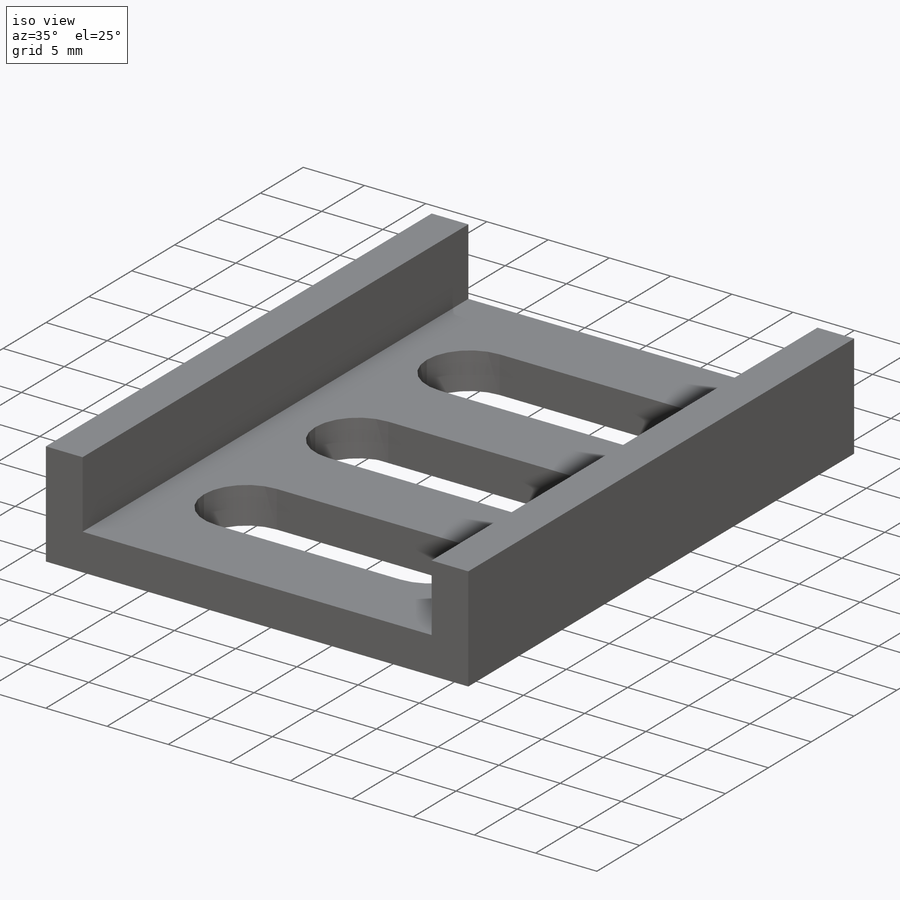
[diagram: iso view]
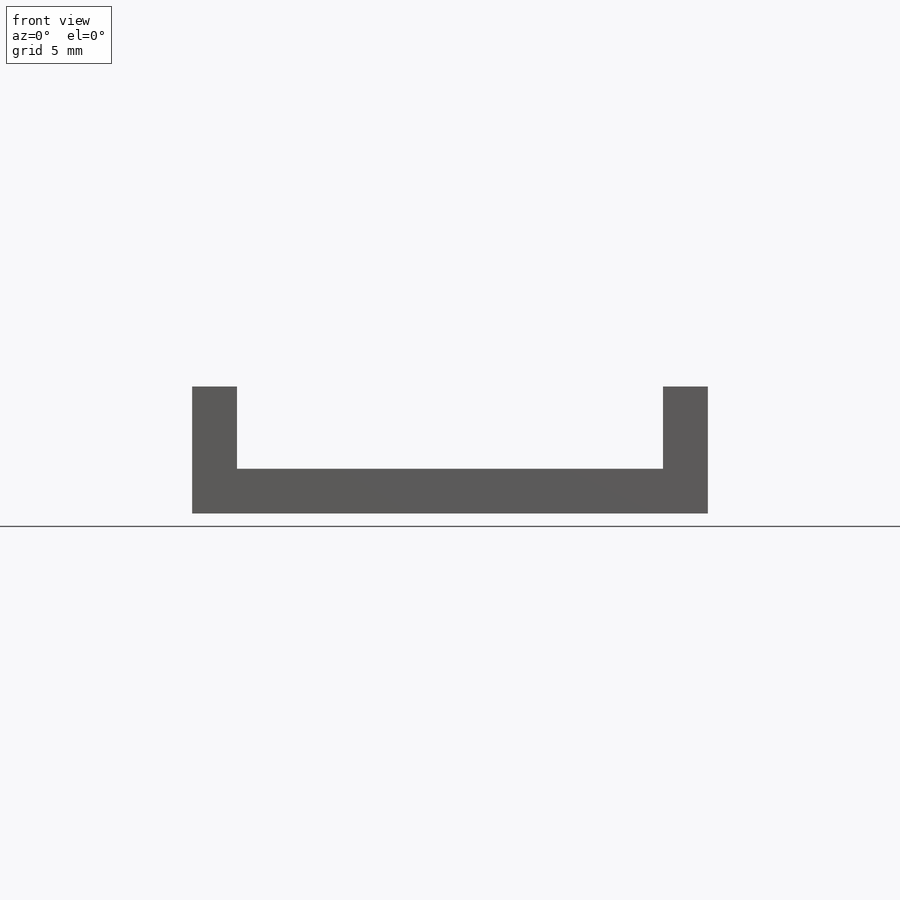
[diagram: front view]
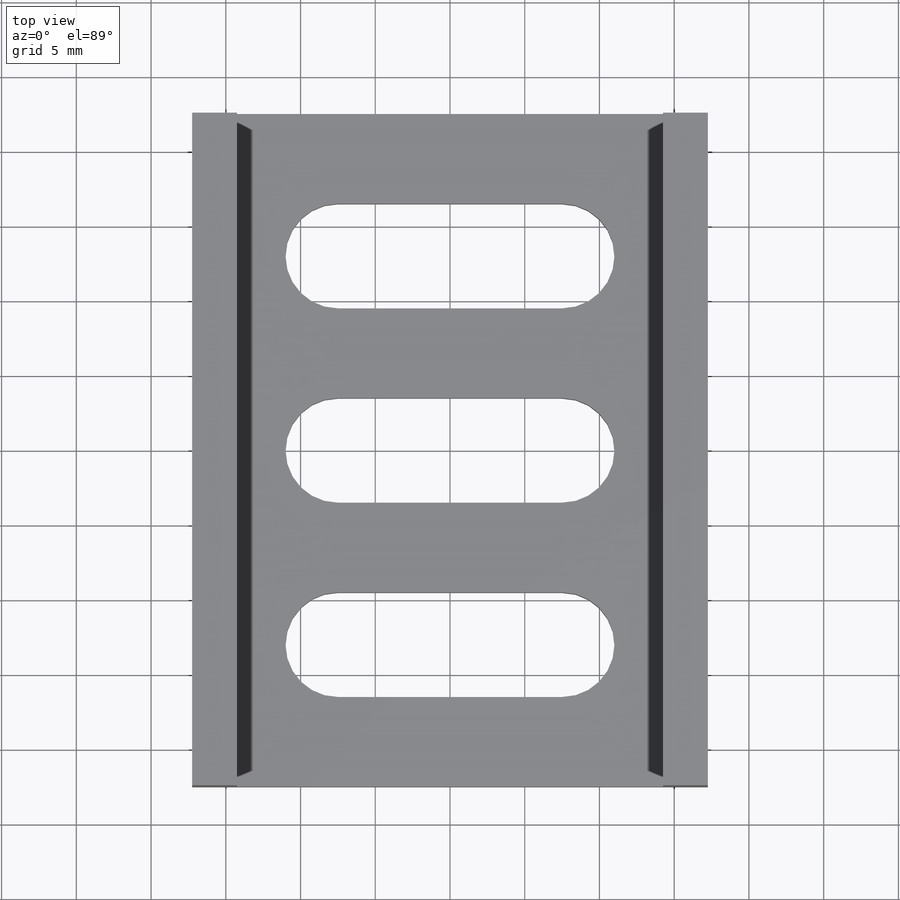
[diagram: top view]
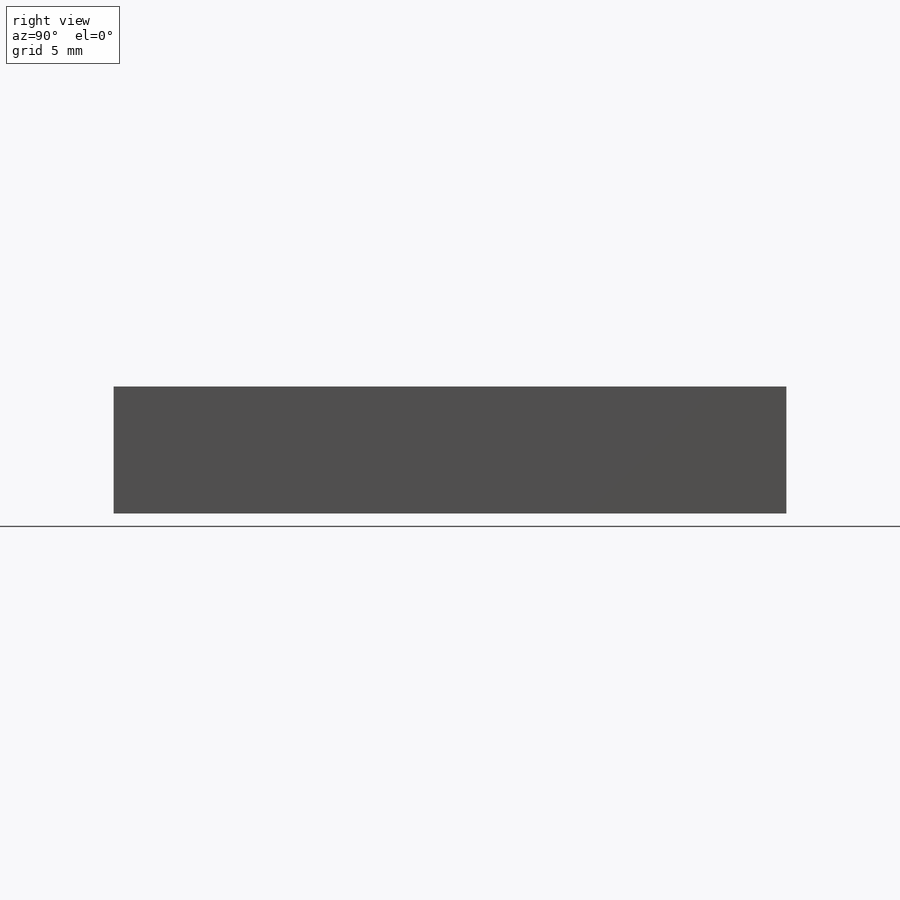
[diagram: right view]
SOLIDWORKS PART (.sldprt)
format: sldprt  version: not decoded by parser v0  size: 217,088 bytes
history: native  units: mm
features: sketch x3, extrude x2, material x1, cut_extrude x1, fillet x1 (+12 scaffold rows collapsed)
feature tree (20):
  scaffold x12  (default folders/planes/origin — collapsed)
  material  "Custom Plastic"
  sketch  "Sketch2"  dims[D1=34.5mm D2=45.0mm]
  extrude  "Boss-Extrude1"  Depth=3mm
  sketch  "Sketch3"  dims[D1=3.0mm D2=3.0mm]
  extrude  "Boss-Extrude2"  Depth=5.5mm
  sketch  "Sketch4"  dims[c1.D1=13.0mm c1.D2=13.0mm c1.D3=7.0mm c1.D4=7.0mm c1.D5=~3.547607mm c2.D5=90.0deg c3.D5=~3.547607mm c4.D5=90.0deg c5.D5=~3.547607mm c6.D5=90.0deg c7.D5=7.0mm c7.D6=22.0mm c7.D7=22.0mm c7.D8=22.0mm]
  cut_extrude  "Cut-Extrude1"  Depth=8mm
  fillet  "Fillet1"  Radius=3.5mm
decode coverage: 7 of 7 modeling features carry decoded parameters
note: ~ marks probable driven/reference dimensions
note: suppression state not decoded; provenance and decode notes live in map.json
